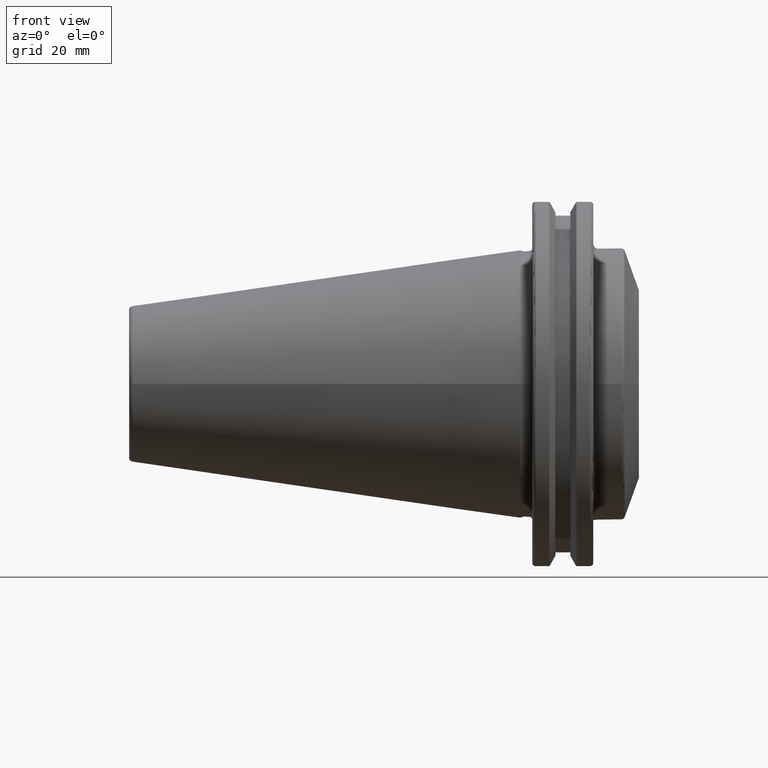
[diagram: clean part render]
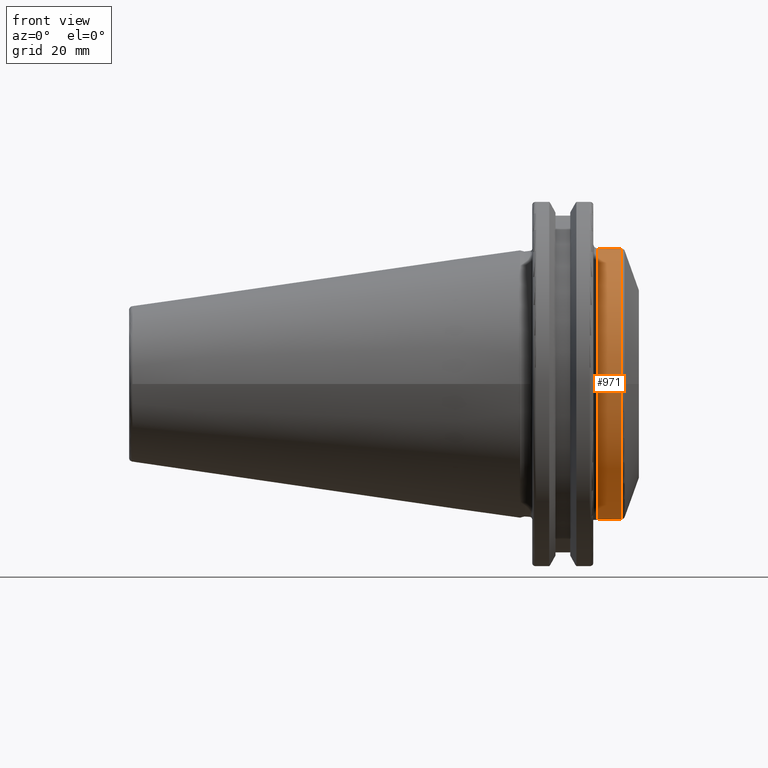
[diagram: same view with one face highlighted and labeled with its STEP entity id]
A machine part, front view. The second image highlights one B-rep face of the part: STEP entity #971.
In plain terms, the highlighted cylindrical surface (bore or boss wall) has radius 35.25 mm, axis along (1, 0, 0).
Its self-contained STEP definition (entity closure, byte-faithful):
#92=LINE('',#1451,#160);
#160=VECTOR('',#1172,35.25);
#228=CYLINDRICAL_SURFACE('',#1056,35.25);
#241=FACE_OUTER_BOUND('',#298,.T.);
#298=EDGE_LOOP('',(#666,#667,#668,#669,#670,#671));
#363=CIRCLE('',#1054,35.25);
#364=CIRCLE('',#1055,35.25);
#365=CIRCLE('',#1057,35.25);
#366=CIRCLE('',#1058,35.25);
#411=VERTEX_POINT('',#1444);
#412=VERTEX_POINT('',#1446);
#413=VERTEX_POINT('',#1450);
#414=VERTEX_POINT('',#1452);
#512=EDGE_CURVE('',#411,#412,#363,.T.);
#513=EDGE_CURVE('',#412,#411,#364,.T.);
#514=EDGE_CURVE('',#412,#413,#92,.T.);
#515=EDGE_CURVE('',#414,#413,#365,.T.);
#516=EDGE_CURVE('',#413,#414,#366,.T.);
#666=ORIENTED_EDGE('',*,*,#513,.F.);
#667=ORIENTED_EDGE('',*,*,#514,.T.);
#668=ORIENTED_EDGE('',*,*,#515,.F.);
#669=ORIENTED_EDGE('',*,*,#516,.F.);
#670=ORIENTED_EDGE('',*,*,#514,.F.);
#671=ORIENTED_EDGE('',*,*,#512,.F.);
#971=ADVANCED_FACE('',(#241),#228,.T.);
#1054=AXIS2_PLACEMENT_3D('',#1447,#1166,#1167);
#1055=AXIS2_PLACEMENT_3D('',#1448,#1168,#1169);
#1056=AXIS2_PLACEMENT_3D('',#1449,#1170,#1171);
#1057=AXIS2_PLACEMENT_3D('',#1453,#1173,#1174);
#1058=AXIS2_PLACEMENT_3D('',#1454,#1175,#1176);
#1166=DIRECTION('center_axis',(1.,0.,0.));
#1167=DIRECTION('ref_axis',(0.,-1.,1.83697019872103E-16));
#1168=DIRECTION('center_axis',(1.,0.,0.));
#1169=DIRECTION('ref_axis',(0.,-1.,1.83697019872103E-16));
#1170=DIRECTION('center_axis',(1.,0.,0.));
#1171=DIRECTION('ref_axis',(0.,1.,0.));
#1172=DIRECTION('',(-1.,0.,0.));
#1173=DIRECTION('center_axis',(-1.,0.,0.));
#1174=DIRECTION('ref_axis',(0.,-1.,-1.22464679914735E-16));
#1175=DIRECTION('center_axis',(-1.,0.,0.));
#1176=DIRECTION('ref_axis',(0.,-1.,-1.22464679914735E-16));
#1444=CARTESIAN_POINT('',(26.2871124434286,-4.31687996699442E-15,35.25));
#1446=CARTESIAN_POINT('',(26.2871124434286,-35.25,-4.31687996699442E-15));
#1447=CARTESIAN_POINT('Origin',(26.2871124434286,0.,0.));
#1448=CARTESIAN_POINT('Origin',(26.2871124434286,0.,0.));
#1449=CARTESIAN_POINT('Origin',(23.0186599908192,0.,0.));
#1450=CARTESIAN_POINT('',(20.05,-35.25,-4.31687996699442E-15));
#1451=CARTESIAN_POINT('',(23.0186599908192,-35.25,-4.31687996699442E-15));
#1452=CARTESIAN_POINT('',(20.05,-4.31687996699442E-15,-35.25));
#1453=CARTESIAN_POINT('Origin',(20.05,0.,0.));
#1454=CARTESIAN_POINT('Origin',(20.05,0.,0.));